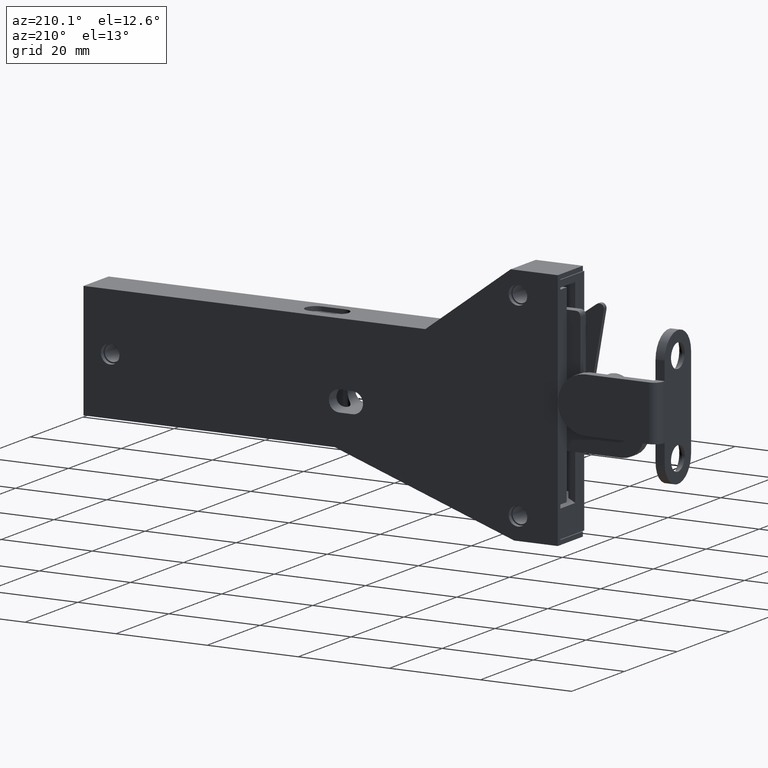
[diagram: clean part render]
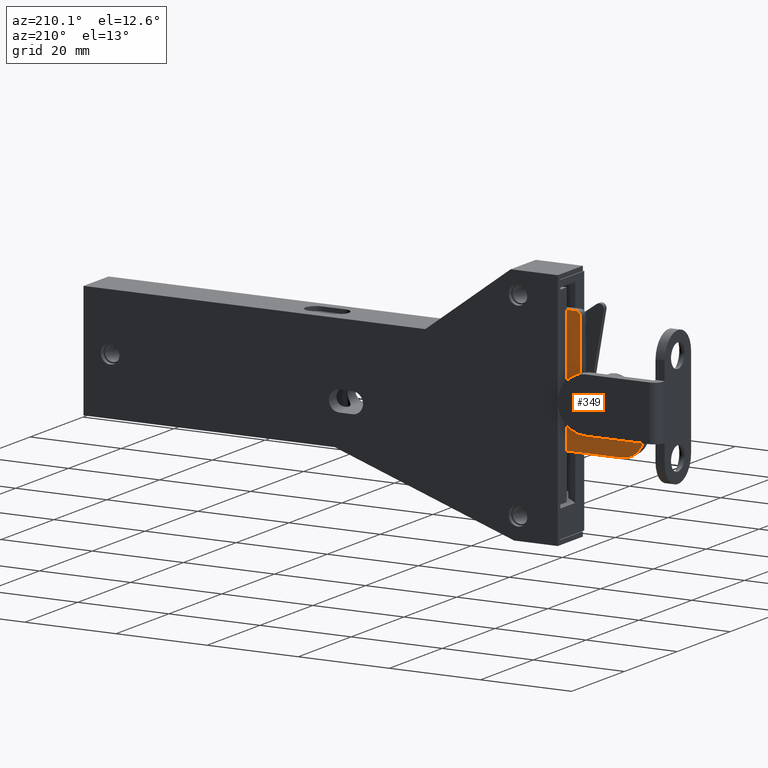
[diagram: same view with one face highlighted and labeled with its STEP entity id]
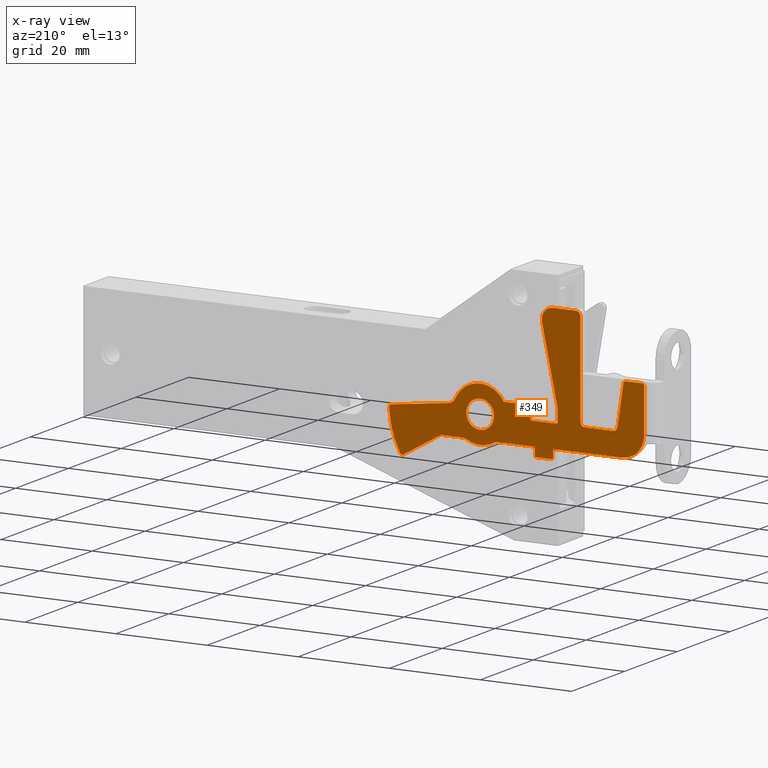
[diagram: x-ray of the same camera — body ghosted, the highlighted face saturated]
A machine part, auxiliary view. The second image highlights one B-rep face of the part: STEP entity #349.
The next image is the same camera in x-ray: the body ghosted, the highlighted face saturated — about 0% of this face is hidden behind the body in this view.
In plain terms, the highlighted planar face has unit normal (0, 1, 0).
Its self-contained STEP definition (entity closure, byte-faithful):
#349=ADVANCED_FACE('',(#1690,#1691),#1689,.T.);
#1689=PLANE('',#2904);
#1690=FACE_OUTER_BOUND('',#2905,.T.);
#1691=FACE_BOUND('',#2906,.T.);
#2901=CARTESIAN_POINT('',(2.56027372613E+001,-4.39999999999E+000,3.57503288933E+001));
#2902=DIRECTION('',(0.00000000000E+000,1.00000000000E+000,0.00000000000E+000));
#2903=DIRECTION('',(0.00000000000E+000,0.00000000000E+000,-1.00000000000E+000));
#2904=AXIS2_PLACEMENT_3D('',#2901,#2902,#2903);
#2905=EDGE_LOOP('',(#3825,#3826,#3827,#3828,#3829,#3830,#3831,#3832,#3833,#3834,#3835,#3836,#3837,#3838,#3839,#3840,#3841,#3842,#3843,#3844,#3845,#3846,#3847,#3848,#3849,#3850,#3851,#3852,#3853,#3854,#3855,#3856,#3857,#3858,#3859));
#2906=EDGE_LOOP('',(#3860,#3861));
#3825=ORIENTED_EDGE('',*,*,#4440,.F.);
#3826=ORIENTED_EDGE('',*,*,#4434,.F.);
#3827=ORIENTED_EDGE('',*,*,#4431,.F.);
#3828=ORIENTED_EDGE('',*,*,#4438,.F.);
#3829=ORIENTED_EDGE('',*,*,#4445,.F.);
#3830=ORIENTED_EDGE('',*,*,#4446,.F.);
#3831=ORIENTED_EDGE('',*,*,#4447,.T.);
#3832=ORIENTED_EDGE('',*,*,#4448,.F.);
#3833=ORIENTED_EDGE('',*,*,#4449,.T.);
#3834=ORIENTED_EDGE('',*,*,#4450,.F.);
#3835=ORIENTED_EDGE('',*,*,#4451,.F.);
#3836=ORIENTED_EDGE('',*,*,#4452,.T.);
#3837=ORIENTED_EDGE('',*,*,#4453,.T.);
#3838=ORIENTED_EDGE('',*,*,#4454,.T.);
#3839=ORIENTED_EDGE('',*,*,#4455,.F.);
#3840=ORIENTED_EDGE('',*,*,#4456,.F.);
#3841=ORIENTED_EDGE('',*,*,#4457,.T.);
#3842=ORIENTED_EDGE('',*,*,#4458,.F.);
#3843=ORIENTED_EDGE('',*,*,#4459,.F.);
#3844=ORIENTED_EDGE('',*,*,#4460,.F.);
#3845=ORIENTED_EDGE('',*,*,#4461,.F.);
#3846=ORIENTED_EDGE('',*,*,#4462,.F.);
#3847=ORIENTED_EDGE('',*,*,#4463,.T.);
#3848=ORIENTED_EDGE('',*,*,#4464,.F.);
#3849=ORIENTED_EDGE('',*,*,#4465,.T.);
#3850=ORIENTED_EDGE('',*,*,#4466,.F.);
#3851=ORIENTED_EDGE('',*,*,#4467,.T.);
#3852=ORIENTED_EDGE('',*,*,#4468,.F.);
#3853=ORIENTED_EDGE('',*,*,#4469,.F.);
#3854=ORIENTED_EDGE('',*,*,#4470,.F.);
#3855=ORIENTED_EDGE('',*,*,#4471,.F.);
#3856=ORIENTED_EDGE('',*,*,#4472,.F.);
#3857=ORIENTED_EDGE('',*,*,#4473,.T.);
#3858=ORIENTED_EDGE('',*,*,#4474,.F.);
#3859=ORIENTED_EDGE('',*,*,#4443,.T.);
#3860=ORIENTED_EDGE('',*,*,#4475,.F.);
#3861=ORIENTED_EDGE('',*,*,#4476,.F.);
#4431=EDGE_CURVE('',#6781,#6788,#6789,.T.);
#4434=EDGE_CURVE('',#6788,#6808,#6809,.T.);
#4438=EDGE_CURVE('',#6828,#6781,#6835,.T.);
#4440=EDGE_CURVE('',#6808,#6848,#6849,.T.);
#4443=EDGE_CURVE('',#6868,#6848,#6869,.T.);
#4445=EDGE_CURVE('',#6881,#6828,#6882,.T.);
#4446=EDGE_CURVE('',#6888,#6881,#6889,.T.);
#4447=EDGE_CURVE('',#6888,#6895,#6896,.T.);
#4448=EDGE_CURVE('',#6902,#6895,#6903,.T.);
#4449=EDGE_CURVE('',#6902,#6909,#6910,.T.);
#4450=EDGE_CURVE('',#6916,#6909,#6917,.T.);
#4451=EDGE_CURVE('',#6923,#6916,#6924,.T.);
#4452=EDGE_CURVE('',#6923,#6930,#6931,.T.);
#4453=EDGE_CURVE('',#6930,#6937,#6938,.T.);
#4454=EDGE_CURVE('',#6937,#6944,#6945,.T.);
#4455=EDGE_CURVE('',#6951,#6944,#6952,.T.);
#4456=EDGE_CURVE('',#6958,#6951,#6959,.T.);
#4457=EDGE_CURVE('',#6958,#6965,#6966,.T.);
#4458=EDGE_CURVE('',#6972,#6965,#6973,.T.);
#4459=EDGE_CURVE('',#6979,#6972,#6980,.T.);
#4460=EDGE_CURVE('',#6986,#6979,#6987,.T.);
#4461=EDGE_CURVE('',#6993,#6986,#6994,.T.);
#4462=EDGE_CURVE('',#7000,#6993,#7001,.T.);
#4463=EDGE_CURVE('',#7000,#7007,#7008,.T.);
#4464=EDGE_CURVE('',#7014,#7007,#7015,.T.);
#4465=EDGE_CURVE('',#7014,#7021,#7022,.T.);
#4466=EDGE_CURVE('',#7028,#7021,#7029,.T.);
#4467=EDGE_CURVE('',#7028,#7035,#7036,.T.);
#4468=EDGE_CURVE('',#7042,#7035,#7043,.T.);
#4469=EDGE_CURVE('',#7049,#7042,#7050,.T.);
#4470=EDGE_CURVE('',#7056,#7049,#7057,.T.);
#4471=EDGE_CURVE('',#7063,#7056,#7064,.T.);
#4472=EDGE_CURVE('',#7070,#7063,#7071,.T.);
#4473=EDGE_CURVE('',#7070,#7077,#7078,.T.);
#4474=EDGE_CURVE('',#6868,#7077,#7084,.T.);
#4475=EDGE_CURVE('',#7090,#7091,#7092,.T.);
#4476=EDGE_CURVE('',#7091,#7090,#7098,.T.);
#6781=VERTEX_POINT('',#9097);
#6788=VERTEX_POINT('',#9101);
#6789=CIRCLE('',#9105,5.00000000000E-001);
#6808=VERTEX_POINT('',#9113);
#6809=LINE('',#9114,#9115);
#6828=VERTEX_POINT('',#9124);
#6835=LINE('',#9128,#9129);
#6848=VERTEX_POINT('',#9135);
#6849=LINE('',#9136,#9137);
#6868=VERTEX_POINT('',#9147);
#6869=CIRCLE('',#9151,2.50000000000E+000);
#6881=VERTEX_POINT('',#9155);
#6882=CIRCLE('',#9159,5.00000000000E-001);
#6888=VERTEX_POINT('',#9160);
#6889=LINE('',#9161,#9162);
#6895=VERTEX_POINT('',#9164);
#6896=CIRCLE('',#9168,5.00000000000E-001);
#6902=VERTEX_POINT('',#9169);
#6903=LINE('',#9170,#9171);
#6909=VERTEX_POINT('',#9173);
#6910=CIRCLE('',#9177,6.00000000000E+000);
#6916=VERTEX_POINT('',#9178);
#6917=CIRCLE('',#9182,2.00000000000E+000);
#6923=VERTEX_POINT('',#9183);
#6924=LINE('',#9184,#9185);
#6930=VERTEX_POINT('',#9187);
#6931=CIRCLE('',#9191,5.00000000000E-001);
#6937=VERTEX_POINT('',#9192);
#6938=CIRCLE('',#9196,2.00000000000E+001);
#6944=VERTEX_POINT('',#9197);
#6945=CIRCLE('',#9201,5.00000000000E-001);
#6951=VERTEX_POINT('',#9202);
#6952=LINE('',#9203,#9204);
#6958=VERTEX_POINT('',#9206);
#6959=LINE('',#9207,#9208);
#6965=VERTEX_POINT('',#9210);
#6966=CIRCLE('',#9214,6.00000000000E+000);
#6972=VERTEX_POINT('',#9215);
#6973=LINE('',#9216,#9217);
#6979=VERTEX_POINT('',#9219);
#6980=LINE('',#9220,#9221);
#6986=VERTEX_POINT('',#9223);
#6987=LINE('',#9224,#9225);
#6993=VERTEX_POINT('',#9227);
#6994=LINE('',#9228,#9229);
#7000=VERTEX_POINT('',#9231);
#7001=LINE('',#9232,#9233);
#7007=VERTEX_POINT('',#9235);
#7008=CIRCLE('',#9239,5.00000000000E+000);
#7014=VERTEX_POINT('',#9240);
#7015=LINE('',#9241,#9242);
#7021=VERTEX_POINT('',#9244);
#7022=CIRCLE('',#9248,5.00000000000E-001);
#7028=VERTEX_POINT('',#9249);
#7029=LINE('',#9250,#9251);
#7035=VERTEX_POINT('',#9253);
#7036=CIRCLE('',#9257,5.00000000000E-001);
#7042=VERTEX_POINT('',#9258);
#7043=LINE('',#9259,#9260);
#7049=VERTEX_POINT('',#9262);
#7050=CIRCLE('',#9266,1.00000000000E+000);
#7056=VERTEX_POINT('',#9267);
#7057=LINE('',#9268,#9269);
#7063=VERTEX_POINT('',#9271);
#7064=CIRCLE('',#9275,1.00000000000E+000);
#7070=VERTEX_POINT('',#9276);
#7071=LINE('',#9277,#9278);
#7077=VERTEX_POINT('',#9280);
#7078=CIRCLE('',#9284,1.00000000000E+000);
#7084=LINE('',#9285,#9286);
#7090=VERTEX_POINT('',#9288);
#7091=VERTEX_POINT('',#9289);
#7092=CIRCLE('',#9293,3.05000000000E+000);
#7098=CIRCLE('',#9297,3.05000000000E+000);
#9097=CARTESIAN_POINT('',(-1.65000000000E+001,-4.39999999999E+000,1.00000000000E+001));
#9101=CARTESIAN_POINT('',(-1.70000000000E+001,-4.39999999999E+000,1.05000000000E+001));
#9102=CARTESIAN_POINT('',(-1.65000000000E+001,-4.39999999999E+000,1.05000000000E+001));
#9103=DIRECTION('',(0.00000000000E+000,1.00000000000E+000,0.00000000000E+000));
#9104=DIRECTION('',(-0.00000000000E+000,-0.00000000000E+000,1.00000000000E+000));
#9105=AXIS2_PLACEMENT_3D('',#9102,#9103,#9104);
#9113=CARTESIAN_POINT('',(-1.70000000000E+001,-4.39999999999E+000,1.29556509603E+001));
#9114=CARTESIAN_POINT('',(-1.70000000000E+001,-4.39999999999E+000,1.05000000000E+001));
#9115=VECTOR('',#9116,2.45565096030E+000);
#9116=DIRECTION('',(-2.14119039295E-013,0.00000000000E+000,1.00000000000E+000));
#9124=CARTESIAN_POINT('',(-1.15000000000E+001,-4.39999999999E+000,1.00000000000E+001));
#9128=CARTESIAN_POINT('',(-1.15000000000E+001,-4.39999999999E+000,1.00000000000E+001));
#9129=VECTOR('',#9130,5.00000000000E+000);
#9130=DIRECTION('',(-1.00000000000E+000,0.00000000000E+000,0.00000000000E+000));
#9135=CARTESIAN_POINT('',(-1.35526308824E+001,-4.39999999999E+000,2.94897212503E+001));
#9136=CARTESIAN_POINT('',(-1.70000000000E+001,-4.39999999999E+000,1.29556509603E+001));
#9137=VECTOR('',#9138,1.68896368874E+001);
#9138=DIRECTION('',(2.04111499883E-001,0.00000000000E+000,9.78947647025E-001));
#9147=CARTESIAN_POINT('',(-1.60000000000E+001,-4.39999999999E+000,3.25000000000E+001));
#9148=CARTESIAN_POINT('',(-1.60000000000E+001,-4.39999999999E+000,3.00000000000E+001));
#9149=DIRECTION('',(0.00000000000E+000,1.00000000000E+000,0.00000000000E+000));
#9150=DIRECTION('',(-0.00000000000E+000,-0.00000000000E+000,1.00000000000E+000));
#9151=AXIS2_PLACEMENT_3D('',#9148,#9149,#9150);
#9155=CARTESIAN_POINT('',(-1.10000000000E+001,-4.39999999999E+000,1.05000000000E+001));
#9156=CARTESIAN_POINT('',(-1.15000000000E+001,-4.39999999999E+000,1.05000000000E+001));
#9157=DIRECTION('',(0.00000000000E+000,1.00000000000E+000,0.00000000000E+000));
#9158=DIRECTION('',(-0.00000000000E+000,-0.00000000000E+000,1.00000000000E+000));
#9159=AXIS2_PLACEMENT_3D('',#9156,#9157,#9158);
#9160=CARTESIAN_POINT('',(-1.10000000000E+001,-4.39999999999E+000,1.25000000000E+001));
#9161=CARTESIAN_POINT('',(-1.10000000000E+001,-4.39999999999E+000,1.25000000000E+001));
#9162=VECTOR('',#9163,1.99999999998E+000);
#9163=DIRECTION('',(0.00000000000E+000,0.00000000000E+000,-1.00000000000E+000));
#9164=CARTESIAN_POINT('',(-1.05000000000E+001,-4.39999999999E+000,1.30000000000E+001));
#9165=CARTESIAN_POINT('',(-1.05000000000E+001,-4.39999999999E+000,1.25000000000E+001));
#9166=DIRECTION('',(0.00000000000E+000,1.00000000000E+000,0.00000000000E+000));
#9167=DIRECTION('',(-0.00000000000E+000,-0.00000000000E+000,1.00000000000E+000));
#9168=AXIS2_PLACEMENT_3D('',#9165,#9166,#9167);
#9169=CARTESIAN_POINT('',(-5.19615242271E+000,-4.39999999999E+000,1.30000000000E+001));
#9170=CARTESIAN_POINT('',(-5.19615242271E+000,-4.39999999999E+000,1.30000000000E+001));
#9171=VECTOR('',#9172,5.30384757729E+000);
#9172=DIRECTION('',(-1.00000000000E+000,0.00000000000E+000,0.00000000000E+000));
#9173=CARTESIAN_POINT('',(5.44316347630E+000,-4.39999999999E+000,1.25242764053E+001));
#9174=CARTESIAN_POINT('',(-8.32667268469E-014,-4.39999999999E+000,1.00000000000E+001));
#9175=DIRECTION('',(0.00000000000E+000,1.00000000000E+000,0.00000000000E+000));
#9176=DIRECTION('',(9.07193912717E-001,-0.00000000000E+000,4.20712734212E-001));
#9177=AXIS2_PLACEMENT_3D('',#9174,#9175,#9176);
#9178=CARTESIAN_POINT('',(6.99649891730E+000,-4.39999999999E+000,1.13828121510E+001));
#9179=CARTESIAN_POINT('',(7.25755130174E+000,-4.39999999999E+000,1.33657018737E+001));
#9180=DIRECTION('',(0.00000000000E+000,1.00000000000E+000,0.00000000000E+000));
#9181=DIRECTION('',(-0.00000000000E+000,-0.00000000000E+000,1.00000000000E+000));
#9182=AXIS2_PLACEMENT_3D('',#9179,#9180,#9181);
#9183=CARTESIAN_POINT('',(1.95502264167E+001,-4.39999999999E+000,9.73008257162E+000));
#9184=CARTESIAN_POINT('',(1.95502264167E+001,-4.39999999999E+000,9.73008257162E+000));
#9185=VECTOR('',#9186,1.26620531192E+001);
#9186=DIRECTION('',(-9.91444861374E-001,0.00000000000E+000,1.30526192220E-001));
#9187=CARTESIAN_POINT('',(1.99845777647E+001,-4.39999999999E+000,9.21472834967E+000));
#9188=CARTESIAN_POINT('',(1.94849633206E+001,-4.39999999999E+000,9.23436014093E+000));
#9189=DIRECTION('',(0.00000000000E+000,1.00000000000E+000,0.00000000000E+000));
#9190=DIRECTION('',(-0.00000000000E+000,-0.00000000000E+000,1.00000000000E+000));
#9191=AXIS2_PLACEMENT_3D('',#9188,#9189,#9190);
#9192=CARTESIAN_POINT('',(1.75712236063E+001,-4.39999999999E+000,4.47403443186E-001));
#9193=CARTESIAN_POINT('',(0.00000000000E+000,-4.39999999999E+000,1.00000000000E+001));
#9194=DIRECTION('',(0.00000000000E+000,1.00000000000E+000,0.00000000000E+000));
#9195=DIRECTION('',(-0.00000000000E+000,-0.00000000000E+000,1.00000000000E+000));
#9196=AXIS2_PLACEMENT_3D('',#9193,#9194,#9195);
#9197=CARTESIAN_POINT('',(1.68819430161E+001,-4.39999999999E+000,2.53205655214E-001));
#9198=CARTESIAN_POINT('',(1.71319430161E+001,-4.39999999999E+000,6.86218357106E-001));
#9199=DIRECTION('',(0.00000000000E+000,1.00000000000E+000,0.00000000000E+000));
#9200=DIRECTION('',(-0.00000000000E+000,-0.00000000000E+000,1.00000000000E+000));
#9201=AXIS2_PLACEMENT_3D('',#9198,#9199,#9200);
#9202=CARTESIAN_POINT('',(8.66025403787E+000,-4.39999999999E+000,5.00000000000E+000));
#9203=CARTESIAN_POINT('',(8.66025403787E+000,-4.39999999999E+000,5.00000000000E+000));
#9204=VECTOR('',#9205,9.49358868959E+000);
#9205=DIRECTION('',(8.66025403785E-001,0.00000000000E+000,-4.99999999999E-001));
#9206=CARTESIAN_POINT('',(3.31662479036E+000,-4.39999999999E+000,5.00000000000E+000));
#9207=CARTESIAN_POINT('',(3.31662479036E+000,-4.39999999999E+000,5.00000000000E+000));
#9208=VECTOR('',#9209,5.34362924752E+000);
#9209=DIRECTION('',(1.00000000000E+000,0.00000000000E+000,0.00000000000E+000));
#9210=CARTESIAN_POINT('',(-3.31662479036E+000,-4.39999999999E+000,5.00000000000E+000));
#9211=CARTESIAN_POINT('',(-8.32667268469E-014,-4.39999999999E+000,1.00000000000E+001));
#9212=DIRECTION('',(0.00000000000E+000,1.00000000000E+000,0.00000000000E+000));
#9213=DIRECTION('',(-0.00000000000E+000,-0.00000000000E+000,1.00000000000E+000));
#9214=AXIS2_PLACEMENT_3D('',#9211,#9212,#9213);
#9215=CARTESIAN_POINT('',(-1.20000000000E+001,-4.39999999999E+000,5.00000000000E+000));
#9216=CARTESIAN_POINT('',(-1.20000000000E+001,-4.39999999999E+000,5.00000000000E+000));
#9217=VECTOR('',#9218,8.68337520964E+000);
#9218=DIRECTION('',(1.00000000000E+000,0.00000000000E+000,0.00000000000E+000));
#9219=CARTESIAN_POINT('',(-1.20000000000E+001,-4.39999999999E+000,3.00000000000E+000));
#9220=CARTESIAN_POINT('',(-1.20000000000E+001,-4.39999999999E+000,3.00000000000E+000));
#9221=VECTOR('',#9222,2.00000000000E+000);
#9222=DIRECTION('',(0.00000000000E+000,0.00000000000E+000,1.00000000000E+000));
#9223=CARTESIAN_POINT('',(-1.60000000000E+001,-4.39999999999E+000,3.00000000000E+000));
#9224=CARTESIAN_POINT('',(-1.60000000000E+001,-4.39999999999E+000,3.00000000000E+000));
#9225=VECTOR('',#9226,4.00000000000E+000);
#9226=DIRECTION('',(1.00000000000E+000,0.00000000000E+000,0.00000000000E+000));
#9227=CARTESIAN_POINT('',(-1.60000000000E+001,-4.39999999999E+000,5.00000000000E+000));
#9228=CARTESIAN_POINT('',(-1.60000000000E+001,-4.39999999999E+000,5.00000000000E+000));
#9229=VECTOR('',#9230,2.00000000000E+000);
#9230=DIRECTION('',(0.00000000000E+000,0.00000000000E+000,-1.00000000000E+000));
#9231=CARTESIAN_POINT('',(-3.10000000000E+001,-4.39999999999E+000,5.00000000000E+000));
#9232=CARTESIAN_POINT('',(-3.10000000000E+001,-4.39999999999E+000,5.00000000000E+000));
#9233=VECTOR('',#9234,1.50000000000E+001);
#9234=DIRECTION('',(1.00000000000E+000,0.00000000000E+000,0.00000000000E+000));
#9235=CARTESIAN_POINT('',(-3.60000000000E+001,-4.39999999999E+000,1.00000000000E+001));
#9236=CARTESIAN_POINT('',(-3.10000000000E+001,-4.39999999999E+000,1.00000000000E+001));
#9237=DIRECTION('',(0.00000000000E+000,1.00000000000E+000,0.00000000000E+000));
#9238=DIRECTION('',(-0.00000000000E+000,-0.00000000000E+000,1.00000000000E+000));
#9239=AXIS2_PLACEMENT_3D('',#9236,#9237,#9238);
#9240=CARTESIAN_POINT('',(-3.60000000000E+001,-4.39999999999E+000,1.95000000000E+001));
#9241=CARTESIAN_POINT('',(-3.60000000000E+001,-4.39999999999E+000,1.95000000000E+001));
#9242=VECTOR('',#9243,9.50000000001E+000);
#9243=DIRECTION('',(0.00000000000E+000,0.00000000000E+000,-1.00000000000E+000));
#9244=CARTESIAN_POINT('',(-3.55000000000E+001,-4.39999999999E+000,2.00000000000E+001));
#9245=CARTESIAN_POINT('',(-3.55000000000E+001,-4.39999999999E+000,1.95000000000E+001));
#9246=DIRECTION('',(0.00000000000E+000,1.00000000000E+000,0.00000000000E+000));
#9247=DIRECTION('',(-0.00000000000E+000,-0.00000000000E+000,1.00000000000E+000));
#9248=AXIS2_PLACEMENT_3D('',#9245,#9246,#9247);
#9249=CARTESIAN_POINT('',(-3.19305937104E+001,-4.39999999999E+000,1.99999999999E+001));
#9250=CARTESIAN_POINT('',(-3.19305937104E+001,-4.39999999999E+000,2.00000000000E+001));
#9251=VECTOR('',#9252,3.56940628964E+000);
#9252=DIRECTION('',(-1.00000000000E+000,0.00000000000E+000,3.42192192107E-012));
#9253=CARTESIAN_POINT('',(-3.14361255339E+001,-4.39999999999E+000,1.95741702264E+001));
#9254=CARTESIAN_POINT('',(-3.19305937104E+001,-4.39999999999E+000,1.94999999999E+001));
#9255=DIRECTION('',(0.00000000000E+000,1.00000000000E+000,0.00000000000E+000));
#9256=DIRECTION('',(-0.00000000000E+000,-0.00000000000E+000,1.00000000000E+000));
#9257=AXIS2_PLACEMENT_3D('',#9254,#9255,#9256);
#9258=CARTESIAN_POINT('',(-3.01277489320E+001,-4.39999999999E+000,1.08516595470E+001));
#9259=CARTESIAN_POINT('',(-3.01277489320E+001,-4.39999999999E+000,1.08516595470E+001));
#9260=VECTOR('',#9261,8.82009307686E+000);
#9261=DIRECTION('',(-1.48340452930E-001,0.00000000000E+000,9.88936352868E-001));
#9262=CARTESIAN_POINT('',(-2.91388125791E+001,-4.39999999999E+000,1.00000000000E+001));
#9263=CARTESIAN_POINT('',(-2.91388125791E+001,-4.39999999999E+000,1.10000000000E+001));
#9264=DIRECTION('',(0.00000000000E+000,1.00000000000E+000,0.00000000000E+000));
#9265=DIRECTION('',(-0.00000000000E+000,-0.00000000000E+000,1.00000000000E+000));
#9266=AXIS2_PLACEMENT_3D('',#9263,#9264,#9265);
#9267=CARTESIAN_POINT('',(-2.30000000000E+001,-4.39999999999E+000,1.00000000000E+001));
#9268=CARTESIAN_POINT('',(-2.30000000000E+001,-4.39999999999E+000,1.00000000000E+001));
#9269=VECTOR('',#9270,6.13881257915E+000);
#9270=DIRECTION('',(-1.00000000000E+000,0.00000000000E+000,1.84036071356E-012));
#9271=CARTESIAN_POINT('',(-2.20000000000E+001,-4.39999999999E+000,1.10000000000E+001));
#9272=CARTESIAN_POINT('',(-2.30000000000E+001,-4.39999999999E+000,1.10000000000E+001));
#9273=DIRECTION('',(0.00000000000E+000,1.00000000000E+000,0.00000000000E+000));
#9274=DIRECTION('',(-0.00000000000E+000,-0.00000000000E+000,1.00000000000E+000));
#9275=AXIS2_PLACEMENT_3D('',#9272,#9273,#9274);
#9276=CARTESIAN_POINT('',(-2.20000000000E+001,-4.39999999999E+000,3.15000000000E+001));
#9277=CARTESIAN_POINT('',(-2.20000000000E+001,-4.39999999999E+000,3.15000000000E+001));
#9278=VECTOR('',#9279,2.05000000000E+001);
#9279=DIRECTION('',(0.00000000000E+000,0.00000000000E+000,-1.00000000000E+000));
#9280=CARTESIAN_POINT('',(-2.10000000000E+001,-4.39999999999E+000,3.25000000000E+001));
#9281=CARTESIAN_POINT('',(-2.10000000000E+001,-4.39999999999E+000,3.15000000000E+001));
#9282=DIRECTION('',(0.00000000000E+000,1.00000000000E+000,0.00000000000E+000));
#9283=DIRECTION('',(1.80389037041E-012,-0.00000000000E+000,1.00000000000E+000));
#9284=AXIS2_PLACEMENT_3D('',#9281,#9282,#9283);
#9285=CARTESIAN_POINT('',(-1.60000000000E+001,-4.39999999999E+000,3.25000000000E+001));
#9286=VECTOR('',#9287,5.00000000000E+000);
#9287=DIRECTION('',(-1.00000000000E+000,0.00000000000E+000,1.84314785656E-012));
#9288=CARTESIAN_POINT('',(-1.18423789293E-015,-4.39999999999E+000,1.30500000000E+001));
#9289=CARTESIAN_POINT('',(0.00000000000E+000,-4.39999999999E+000,6.95000000000E+000));
#9290=CARTESIAN_POINT('',(0.00000000000E+000,-4.39999999999E+000,1.00000000000E+001));
#9291=DIRECTION('',(0.00000000000E+000,1.00000000000E+000,0.00000000000E+000));
#9292=DIRECTION('',(-1.22460635382E-016,0.00000000000E+000,-1.00000000000E+000));
#9293=AXIS2_PLACEMENT_3D('',#9290,#9291,#9292);
#9294=CARTESIAN_POINT('',(0.00000000000E+000,-4.39999999999E+000,1.00000000000E+001));
#9295=DIRECTION('',(0.00000000000E+000,1.00000000000E+000,0.00000000000E+000));
#9296=DIRECTION('',(-1.22460635382E-016,0.00000000000E+000,-1.00000000000E+000));
#9297=AXIS2_PLACEMENT_3D('',#9294,#9295,#9296);